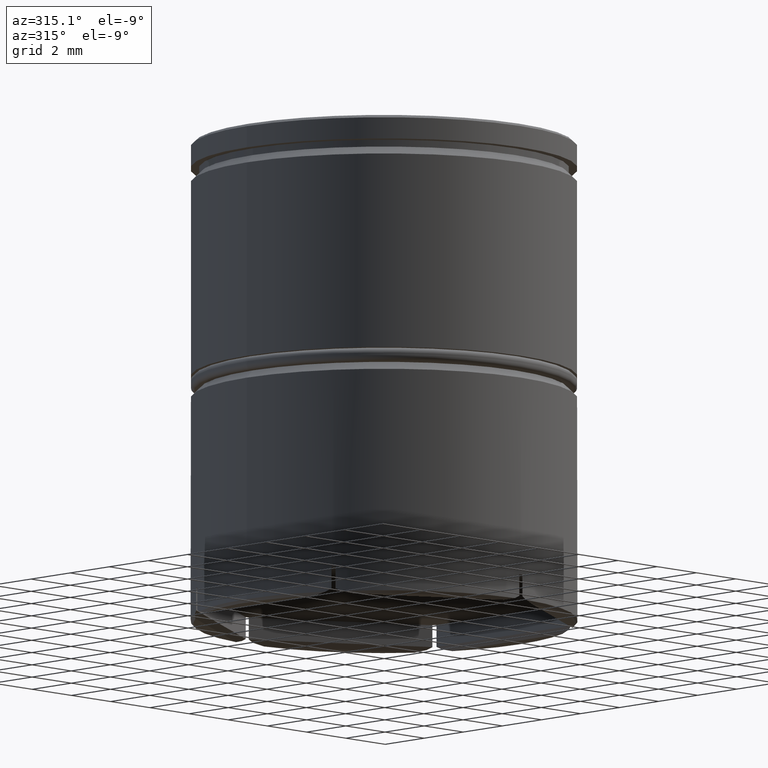
[diagram: clean part render]
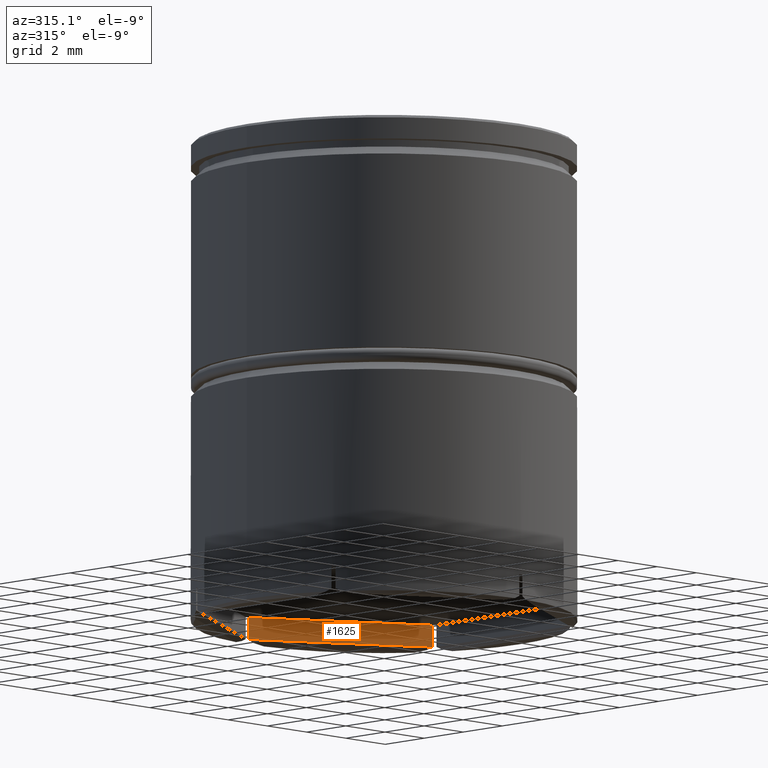
[diagram: same view with one face highlighted and labeled with its STEP entity id]
A machine part, auxiliary view. The second image highlights one B-rep face of the part: STEP entity #1625.
In plain terms, the highlighted planar face has unit normal (0.5, 0.866, -0).
Its self-contained STEP definition (entity closure, byte-faithful):
#8 = CARTESIAN_POINT ( 'NONE',  ( 0.07636585976015120014, 6.999583434424016204, 0.000000000000000000 ) ) ;
#141 = DIRECTION ( 'NONE',  ( 0.8660254037844385966, -0.5000000000000001110, 0.000000000000000000 ) ) ;
#151 = CARTESIAN_POINT ( 'NONE',  ( 0.000000000000000000, 7.043673284113435962, -16.50000000000000000 ) ) ;
#163 = ORIENTED_EDGE ( 'NONE', *, *, #315, .T. ) ;
#183 = CARTESIAN_POINT ( 'NONE',  ( 5.842848008753792399, 3.670303413425364258, -17.29999999999999716 ) ) ;
#190 = ORIENTED_EDGE ( 'NONE', *, *, #440, .T. ) ;
#191 = VECTOR ( 'NONE', #852, 1000.000000000000000 ) ;
#211 = DIRECTION ( 'NONE',  ( 0.8660254037844385966, -0.5000000000000001110, 0.000000000000000000 ) ) ;
#259 = VERTEX_POINT ( 'NONE', #1032 ) ;
#272 = CARTESIAN_POINT ( 'NONE',  ( 0.000000000000000000, 7.043673284113435962, -16.50000000000000000 ) ) ;
#314 = VERTEX_POINT ( 'NONE', #1013 ) ;
#315 = EDGE_CURVE ( 'NONE', #1326, #259, #399, .T. ) ;
#348 = CARTESIAN_POINT ( 'NONE',  ( 6.023634140239852108, 3.565926491746137295, -17.29999999999999716 ) ) ;
#399 = LINE ( 'NONE', #8, #1543 ) ;
#440 = EDGE_CURVE ( 'NONE', #259, #1204, #1096, .T. ) ;
#591 = AXIS2_PLACEMENT_3D ( 'NONE', #272, #788, #1200 ) ;
#701 = EDGE_LOOP ( 'NONE', ( #163, #190, #1213, #1520 ) ) ;
#726 = LINE ( 'NONE', #745, #191 ) ;
#745 = CARTESIAN_POINT ( 'NONE',  ( 6.023634140239852108, 3.565926491746137295, 0.000000000000000000 ) ) ;
#755 = EDGE_CURVE ( 'NONE', #1204, #314, #726, .T. ) ;
#788 = DIRECTION ( 'NONE',  ( 0.5000000000000001110, 0.8660254037844385966, -0.000000000000000000 ) ) ;
#852 = DIRECTION ( 'NONE',  ( -0.000000000000000000, -0.000000000000000000, 1.000000000000000000 ) ) ;
#907 = PLANE ( 'NONE',  #591 ) ;
#929 = VECTOR ( 'NONE', #141, 1000.000000000000000 ) ;
#1013 = CARTESIAN_POINT ( 'NONE',  ( 6.023634140239852108, 3.565926491746137295, -16.50000000000000000 ) ) ;
#1026 = FACE_OUTER_BOUND ( 'NONE', #701, .T. ) ;
#1032 = CARTESIAN_POINT ( 'NONE',  ( 0.07636585976015120014, 6.999583434424016204, -17.29999999999999716 ) ) ;
#1092 = EDGE_CURVE ( 'NONE', #1326, #314, #1429, .T. ) ;
#1096 = LINE ( 'NONE', #183, #1178 ) ;
#1178 = VECTOR ( 'NONE', #211, 1000.000000000000000 ) ;
#1200 = DIRECTION ( 'NONE',  ( -0.8660254037844385966, 0.5000000000000001110, 0.000000000000000000 ) ) ;
#1204 = VERTEX_POINT ( 'NONE', #348 ) ;
#1213 = ORIENTED_EDGE ( 'NONE', *, *, #755, .T. ) ;
#1263 = DIRECTION ( 'NONE',  ( 0.000000000000000000, 0.000000000000000000, -1.000000000000000000 ) ) ;
#1326 = VERTEX_POINT ( 'NONE', #1467 ) ;
#1429 = LINE ( 'NONE', #151, #929 ) ;
#1467 = CARTESIAN_POINT ( 'NONE',  ( 0.07636585976015120014, 6.999583434424016204, -16.50000000000000000 ) ) ;
#1520 = ORIENTED_EDGE ( 'NONE', *, *, #1092, .F. ) ;
#1543 = VECTOR ( 'NONE', #1263, 1000.000000000000000 ) ;
#1625 = ADVANCED_FACE ( 'NONE', ( #1026 ), #907, .F. ) ;